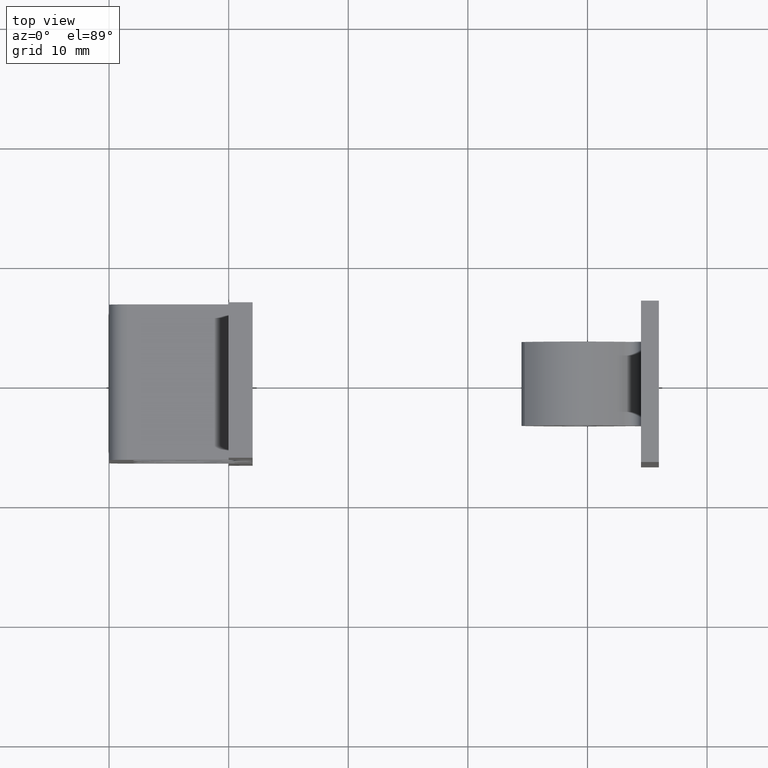
[diagram: clean part render]
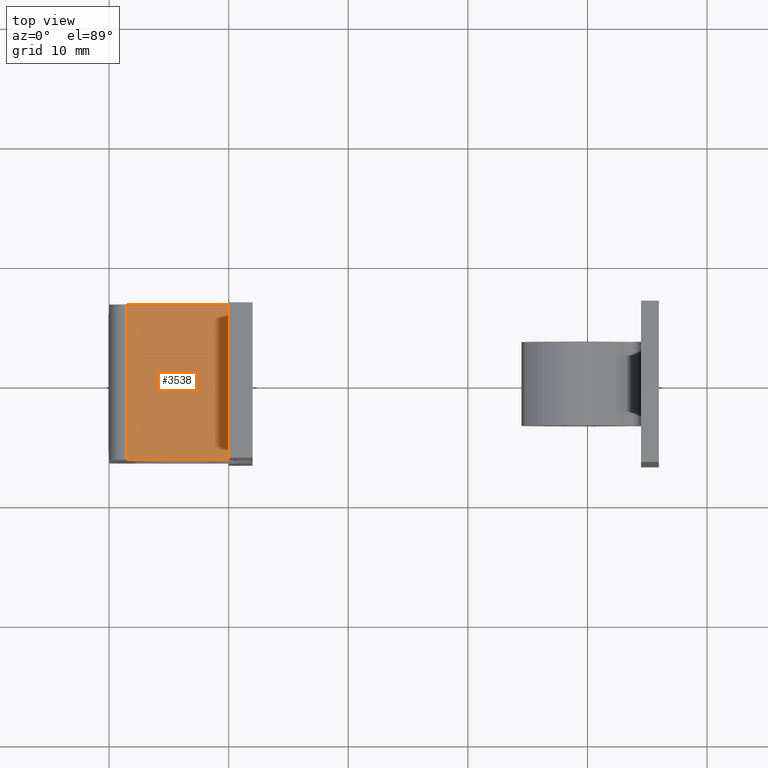
[diagram: same view with one face highlighted and labeled with its STEP entity id]
A machine part, top view. The second image highlights one B-rep face of the part: STEP entity #3538.
In plain terms, the highlighted face is a freeform B-spline surface patch.
Its self-contained STEP definition (entity closure, byte-faithful):
#2091=CARTESIAN_POINT('',(1.500000000000000,6.500000000000000,9.0));
#2092=VERTEX_POINT('',#2091);
#2093=CARTESIAN_POINT('',(9.999900000000000,6.500000000000000,9.0));
#2094=VERTEX_POINT('',#2093);
#2095=CARTESIAN_POINT('',(1.500000000000000,6.500000000000000,9.0));
#2096=CARTESIAN_POINT('',(9.999900000000000,6.500000000000000,9.0));
#2097=QUASI_UNIFORM_CURVE('',1,(#2095,#2096),.UNSPECIFIED.,.F.,.U.);
#2098=EDGE_CURVE('',#2092,#2094,#2097,.T.);
#2489=CARTESIAN_POINT('',(1.500000000000000,-6.500000000000000,9.0));
#2490=VERTEX_POINT('',#2489);
#2491=CARTESIAN_POINT('',(9.999900000000000,-6.500000000000000,9.0));
#2492=VERTEX_POINT('',#2491);
#2493=CARTESIAN_POINT('',(1.500000000000000,-6.500000000000000,9.0));
#2494=CARTESIAN_POINT('',(9.999900000000000,-6.500000000000000,9.0));
#2495=QUASI_UNIFORM_CURVE('',1,(#2493,#2494),.UNSPECIFIED.,.F.,.U.);
#2496=EDGE_CURVE('',#2490,#2492,#2495,.T.);
#2903=CARTESIAN_POINT('',(1.500000000000000,-6.500000000000000,9.0));
#2904=CARTESIAN_POINT('',(1.500000000000000,6.500000000000000,9.0));
#2905=QUASI_UNIFORM_CURVE('',1,(#2903,#2904),.UNSPECIFIED.,.F.,.U.);
#2906=EDGE_CURVE('',#2490,#2092,#2905,.T.);
#3523=CARTESIAN_POINT('',(1.075430041842068,-7.149349974803478,9.0));
#3524=CARTESIAN_POINT('',(10.424469578182791,-7.149349974803478,9.0));
#3525=CARTESIAN_POINT('',(1.075430041842068,7.149350323490650,9.0));
#3526=CARTESIAN_POINT('',(10.424469578182791,7.149350323490650,9.0));
#3527=B_SPLINE_SURFACE_WITH_KNOTS('',1,1,((#3523,#3525),(#3524,#3526)),.UNSPECIFIED.,.F.,.F.,.U.,(2,2),(2,2),(0.0,9.349039536340724),(0.0,14.298700298294129),.UNSPECIFIED.);
#3528=ORIENTED_EDGE('',*,*,#2098,.F.);
#3529=ORIENTED_EDGE('',*,*,#2906,.F.);
#3530=ORIENTED_EDGE('',*,*,#2496,.T.);
#3531=CARTESIAN_POINT('',(9.999900000000000,-6.500000000000000,9.0));
#3532=CARTESIAN_POINT('',(9.999900000000000,6.500000000000000,9.0));
#3533=QUASI_UNIFORM_CURVE('',1,(#3531,#3532),.UNSPECIFIED.,.F.,.U.);
#3534=EDGE_CURVE('',#2492,#2094,#3533,.T.);
#3535=ORIENTED_EDGE('',*,*,#3534,.T.);
#3536=EDGE_LOOP('',(#3528,#3529,#3530,#3535));
#3537=FACE_OUTER_BOUND('',#3536,.T.);
#3538=ADVANCED_FACE('',(#3537),#3527,.T.);